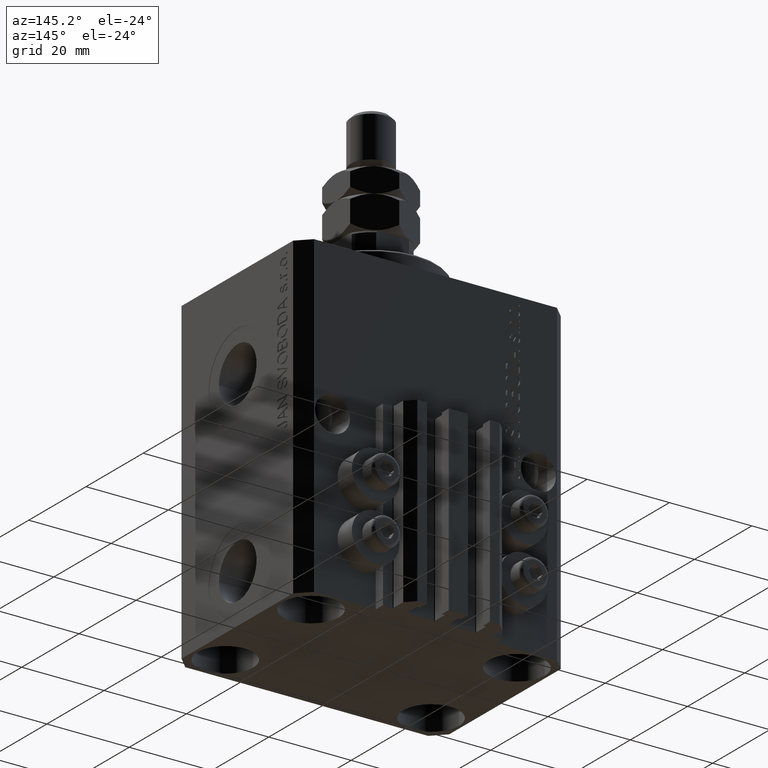
[diagram: clean part render]
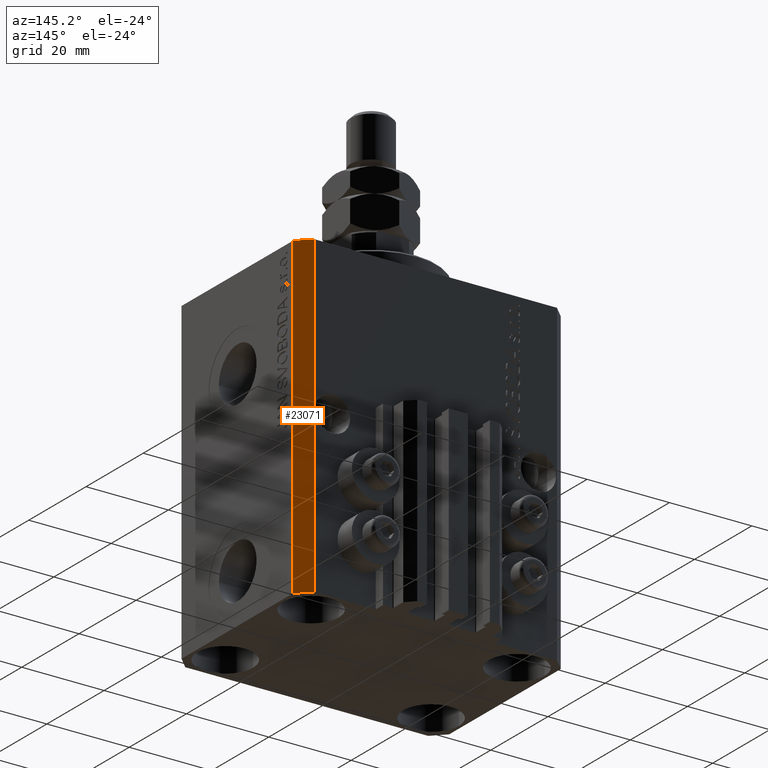
[diagram: same view with one face highlighted and labeled with its STEP entity id]
A machine part, auxiliary view. The second image highlights one B-rep face of the part: STEP entity #23071.
In plain terms, the highlighted planar face has unit normal (0.7071, 0.7071, 0).
Its self-contained STEP definition (entity closure, byte-faithful):
#11551 = CARTESIAN_POINT ( 'NONE',  ( 29.49999999999707967, 22.49999999999951328, -77.00000000000000000 ) ) ;
#12632 = ORIENTED_EDGE ( 'NONE', *, *, #44143, .T. ) ;
#12681 = CARTESIAN_POINT ( 'NONE',  ( 32.49999999999702993, 19.49999999999945999, 0.000000000000000000 ) ) ;
#12962 = CARTESIAN_POINT ( 'NONE',  ( 32.49999999999702993, 19.49999999999945999, 0.000000000000000000 ) ) ;
#13774 = EDGE_CURVE ( 'NONE', #28474, #40597, #16168, .T. ) ;
#16168 = LINE ( 'NONE', #12681, #47519 ) ;
#18827 = CARTESIAN_POINT ( 'NONE',  ( 32.49999999999702993, 19.49999999999945999, -77.00000000000000000 ) ) ;
#19022 = LINE ( 'NONE', #30001, #33422 ) ;
#20966 = ORIENTED_EDGE ( 'NONE', *, *, #22874, .F. ) ;
#22248 = LINE ( 'NONE', #11551, #36703 ) ;
#22316 = DIRECTION ( 'NONE',  ( -0.7071067811865351382, 0.7071067811865598962, 0.000000000000000000 ) ) ;
#22357 = EDGE_CURVE ( 'NONE', #38745, #40597, #22248, .T. ) ;
#22874 = EDGE_CURVE ( 'NONE', #45156, #28474, #34092, .T. ) ;
#23071 = ADVANCED_FACE ( 'NONE', ( #41758 ), #36794, .T. ) ;
#28474 = VERTEX_POINT ( 'NONE', #12962 ) ;
#30001 = CARTESIAN_POINT ( 'NONE',  ( 32.49999999999702993, 19.49999999999945999, -77.00000000000000000 ) ) ;
#33422 = VECTOR ( 'NONE', #41708, 1000.000000000000000 ) ;
#34092 = LINE ( 'NONE', #49023, #45457 ) ;
#35929 = AXIS2_PLACEMENT_3D ( 'NONE', #18827, #49221, #22316 ) ;
#36703 = VECTOR ( 'NONE', #38201, 1000.000000000000000 ) ;
#36794 = PLANE ( 'NONE',  #35929 ) ;
#36831 = ORIENTED_EDGE ( 'NONE', *, *, #22357, .T. ) ;
#38201 = DIRECTION ( 'NONE',  ( 0.000000000000000000, 0.000000000000000000, 1.000000000000000000 ) ) ;
#38745 = VERTEX_POINT ( 'NONE', #44810 ) ;
#40597 = VERTEX_POINT ( 'NONE', #43815 ) ;
#41708 = DIRECTION ( 'NONE',  ( -0.7071067811865352493, 0.7071067811865597852, 0.000000000000000000 ) ) ;
#41758 = FACE_OUTER_BOUND ( 'NONE', #45480, .T. ) ;
#43815 = CARTESIAN_POINT ( 'NONE',  ( 29.49999999999707967, 22.49999999999951328, 0.000000000000000000 ) ) ;
#44143 = EDGE_CURVE ( 'NONE', #45156, #38745, #19022, .T. ) ;
#44705 = ORIENTED_EDGE ( 'NONE', *, *, #13774, .F. ) ;
#44810 = CARTESIAN_POINT ( 'NONE',  ( 29.49999999999707967, 22.49999999999951328, -77.00000000000000000 ) ) ;
#45156 = VERTEX_POINT ( 'NONE', #46433 ) ;
#45457 = VECTOR ( 'NONE', #49276, 1000.000000000000000 ) ;
#45480 = EDGE_LOOP ( 'NONE', ( #44705, #20966, #12632, #36831 ) ) ;
#46433 = CARTESIAN_POINT ( 'NONE',  ( 32.49999999999702993, 19.49999999999945999, -77.00000000000000000 ) ) ;
#46552 = DIRECTION ( 'NONE',  ( -0.7071067811865352493, 0.7071067811865597852, 0.000000000000000000 ) ) ;
#47519 = VECTOR ( 'NONE', #46552, 1000.000000000000000 ) ;
#49023 = CARTESIAN_POINT ( 'NONE',  ( 32.49999999999702993, 19.49999999999945999, -77.00000000000000000 ) ) ;
#49221 = DIRECTION ( 'NONE',  ( 0.7071067811865598962, 0.7071067811865351382, -0.000000000000000000 ) ) ;
#49276 = DIRECTION ( 'NONE',  ( 0.000000000000000000, 0.000000000000000000, 1.000000000000000000 ) ) ;